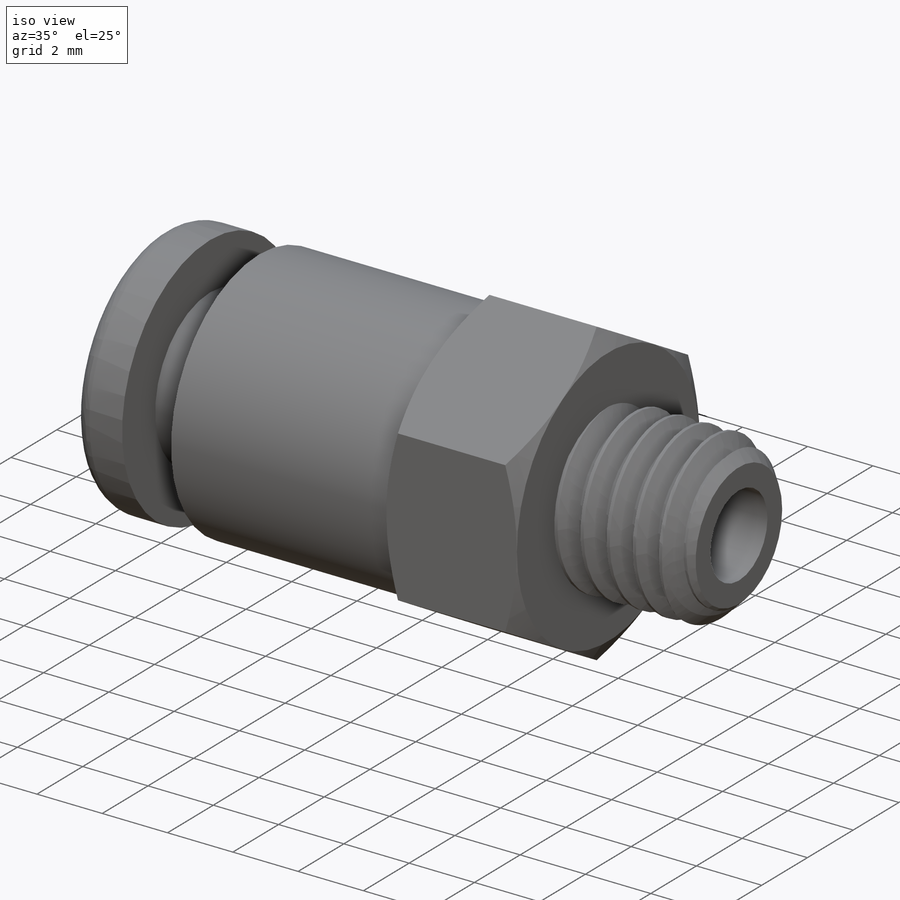
[diagram: iso view]
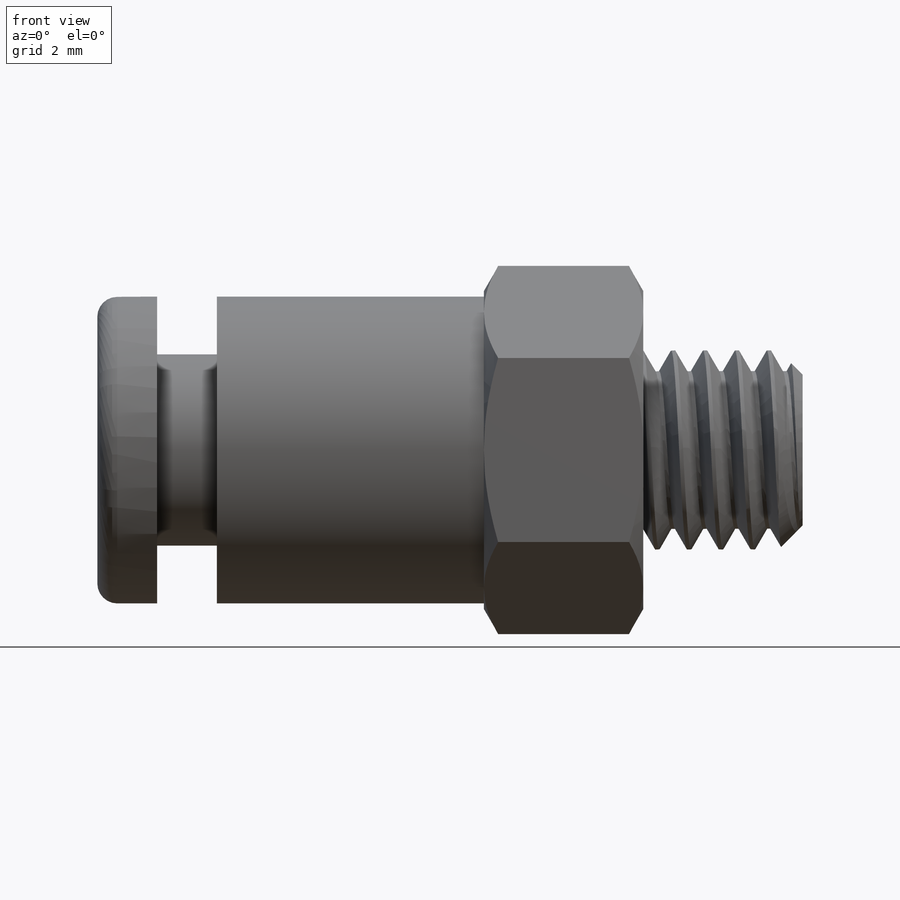
[diagram: front view]
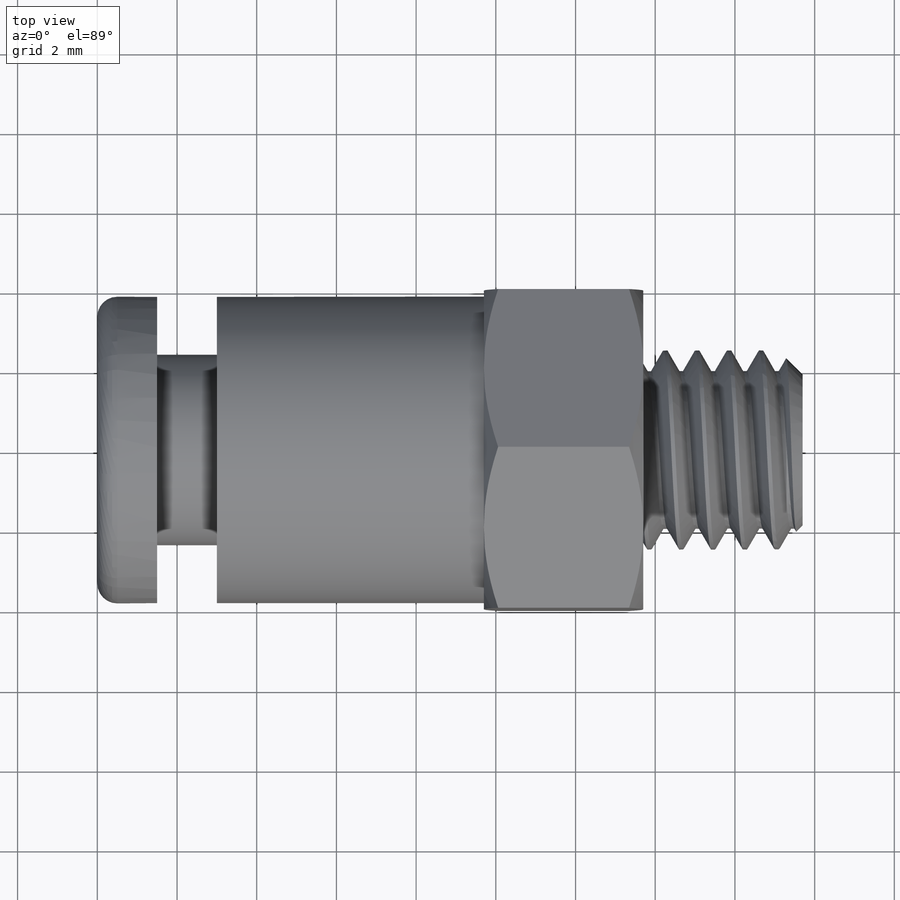
[diagram: top view]
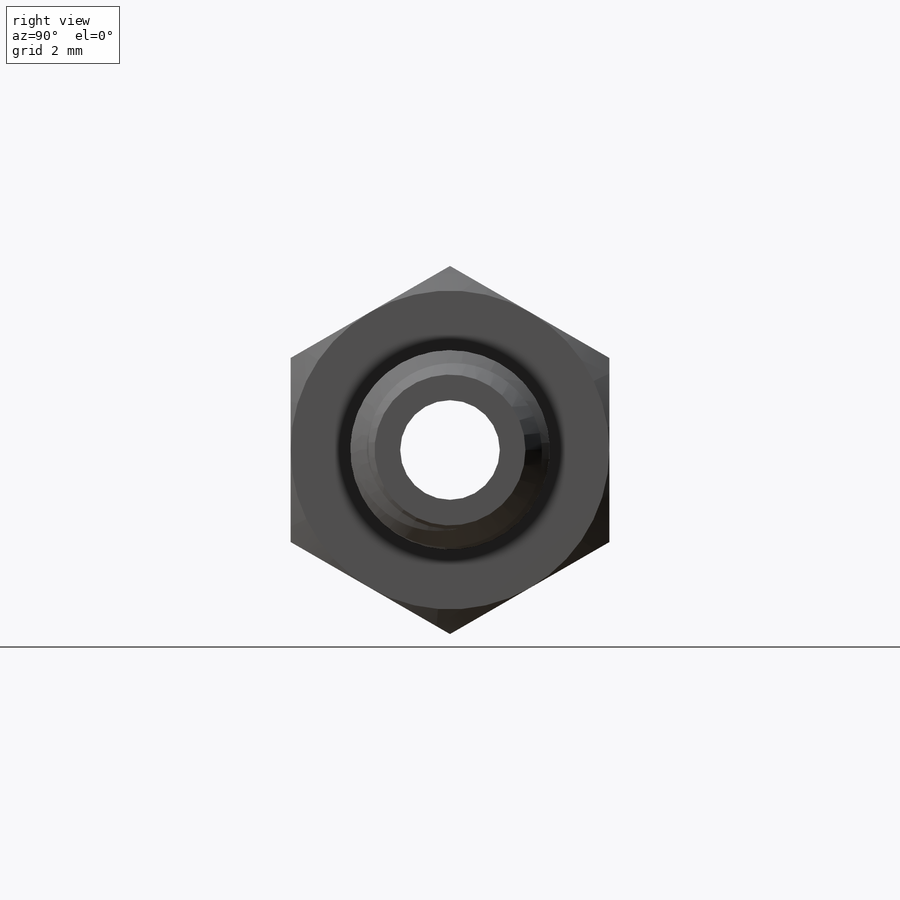
[diagram: right view]
SOLIDWORKS PART (.sldprt)
format: sldprt  version: not decoded by parser v0  size: 615,936 bytes
history: native  units: mm
features: sketch x10, cut_extrude x4, extrude x2, material x1, revolve x1, plane x1, helix x1, sweep x1, boolean_combine x1 (+14 scaffold rows collapsed)
feature tree (36):
  scaffold x14  (default folders/planes/origin — collapsed)
  material  "Material <not specified>"
  sketch  "Sketch0"  dims[c1.L=17.7mm c1.M=13.3mm c1.A=10.4mm c1.D=7.7mm c1.Tube OD=4.0mm c1.Thread OD=5.0mm c1.H=8.0mm c1.D1=4.1mm c1.D2=4.1mm c2.D1=4.1mm c2.ID=2.5mm c2.Thread Length=4.1mm c3.D1=10.4mm c3.D2=~8.56806mm c3.D3=~8.56806mm c3.A=14.7mm c3.Thread Length=4.0mm]
  sketch  "Sketch1"  dims[c1.D4=0.5mm c1.R=0.5mm c1.D1=3.35mm c1.D3=4.8mm c1.D2=0.9mm c2.D3=1.5mm c2.D2=~2.054118mm c2.D1=1.5mm c3.D3=~1.498335mm c3.D2=1.5mm c3.D4=0.1mm]
  revolve  "Revolve2"  Angle=360deg
  plane  "Plane1"
  sketch  "Sketch2"
  extrude  "Extrude1"  [1 undecoded]
  sketch  "Sketch3"  dims[D1=0.0mm]
  helix  "Helix/Spiral1"  Pitch=6.8mm Height=6.8mm
  sketch  "Sketch4"  dims[c1.D3=~0.086603mm c1.D1=0.8mm c1.D2=0.1mm c2.D3=~9.275616mm c3.D3=45.0deg c4.D3=~1.367643mm c5.D3=45.0deg]
  sketch  "Sketch5"
  cut_extrude  "Extrude2"  [1 undecoded]
  sweep  "Cut-Sweep1"
  sketch  "Sketch7"
  cut_extrude  "Extrude4"  [1 undecoded]
  sketch  "Sketch8"
  extrude  "Extrude5"  Depth=4mm
  sketch  "Sketch9"
  cut_extrude  "Extrude6"  [1 undecoded]
  sketch  "Sketch10"  dims[D1=0.0mm]
  cut_extrude  "Extrude7"  [1 undecoded]
  boolean_combine  "Combine1"
decode coverage: 8 of 20 modeling features carry decoded parameters
note: ~ marks probable driven/reference dimensions
note: 5 parameter values undecoded
summary: no parameter record found for 5 features
note: suppression state not decoded; provenance and decode notes live in map.json
